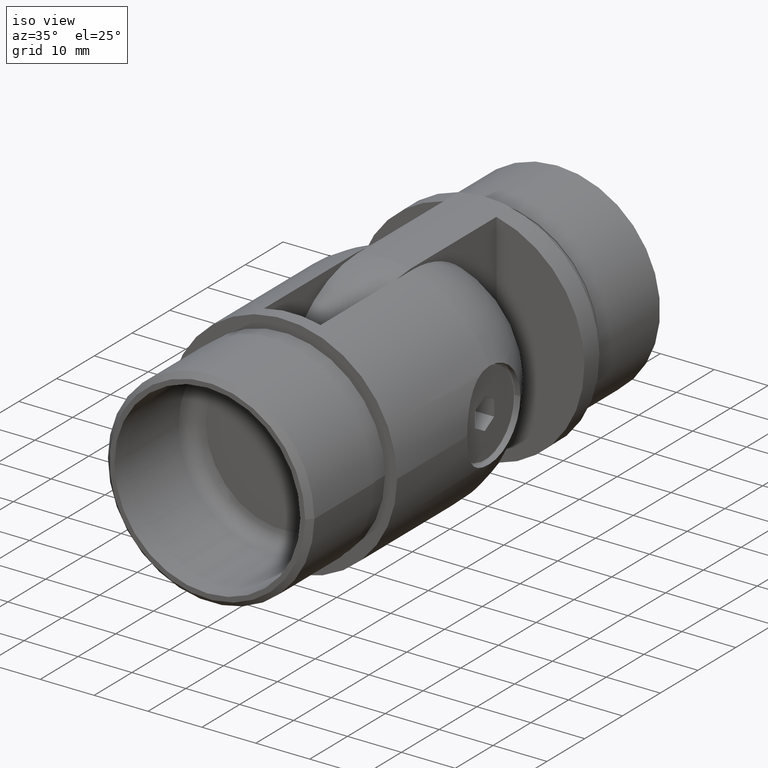
[diagram: clean part render]
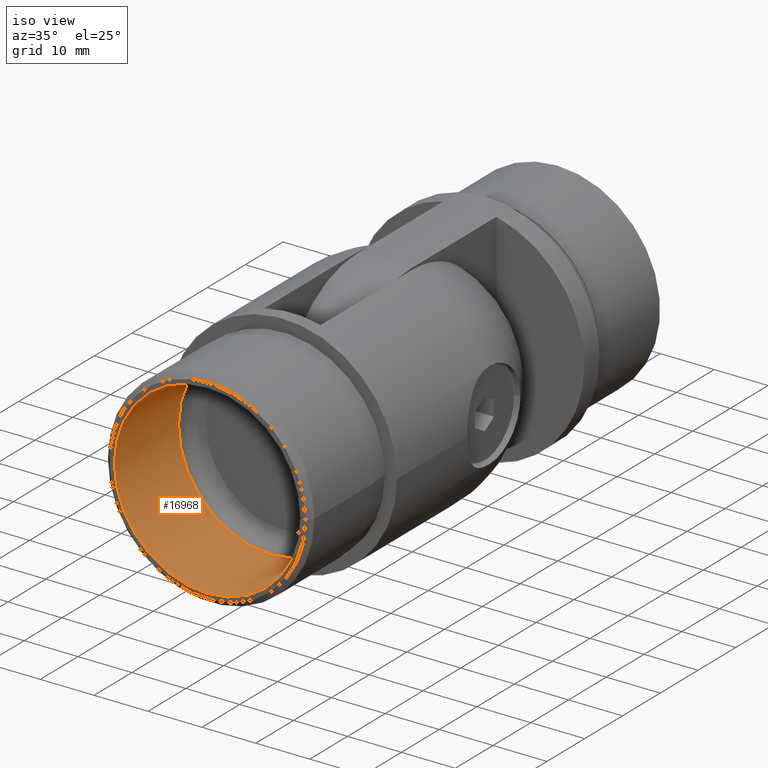
[diagram: same view with one face highlighted and labeled with its STEP entity id]
A machine part, iso view. The second image highlights one B-rep face of the part: STEP entity #16968.
In plain terms, the highlighted cylindrical surface (bore or boss wall) has radius 17.25 mm, axis along (-0, 1, 0).
Its self-contained STEP definition (entity closure, byte-faithful):
#44 = VERTEX_POINT ( 'NONE', #11053 ) ;
#182 = CYLINDRICAL_SURFACE ( 'NONE', #2869, 17.24999999999999600 ) ;
#375 = CARTESIAN_POINT ( 'NONE',  ( 2.038381726453983900E-016, -3.000000000000000000, 0.0000000000000000000 ) ) ;
#1243 = FACE_OUTER_BOUND ( 'NONE', #16745, .T. ) ;
#1389 = VERTEX_POINT ( 'NONE', #9701 ) ;
#1429 = CARTESIAN_POINT ( 'NONE',  ( 2.038381726453984600E-016, -3.000000000000001300, 0.0000000000000000000 ) ) ;
#2440 = DIRECTION ( 'NONE',  ( 6.794605754846613000E-017, -1.000000000000000000, 0.0000000000000000000 ) ) ;
#2869 = AXIS2_PLACEMENT_3D ( 'NONE', #375, #3753, #17933 ) ;
#3753 = DIRECTION ( 'NONE',  ( -6.794605754846613000E-017, 1.000000000000000000, -0.0000000000000000000 ) ) ;
#3841 = CIRCLE ( 'NONE', #10905, 17.24999999999999300 ) ;
#3919 = ORIENTED_EDGE ( 'NONE', *, *, #13979, .T. ) ;
#3960 = FACE_OUTER_BOUND ( 'NONE', #17744, .T. ) ;
#5155 = DIRECTION ( 'NONE',  ( 1.000000000000000000, 0.0000000000000000000, 0.0000000000000000000 ) ) ;
#9701 = CARTESIAN_POINT ( 'NONE',  ( 17.24999999999999600, -3.000000000000000000, 0.0000000000000000000 ) ) ;
#10905 = AXIS2_PLACEMENT_3D ( 'NONE', #15068, #2440, #5155 ) ;
#11035 = ORIENTED_EDGE ( 'NONE', *, *, #15330, .T. ) ;
#11053 = CARTESIAN_POINT ( 'NONE',  ( 17.24999999999999300, -20.00000000000000000, 0.0000000000000000000 ) ) ;
#11570 = DIRECTION ( 'NONE',  ( -6.837611295239389200E-017, 1.000000000000000000, 0.0000000000000000000 ) ) ;
#11628 = AXIS2_PLACEMENT_3D ( 'NONE', #1429, #11570, #18629 ) ;
#12764 = CIRCLE ( 'NONE', #11628, 17.24999999999999600 ) ;
#13979 = EDGE_CURVE ( 'NONE', #44, #44, #3841, .T. ) ;
#15068 = CARTESIAN_POINT ( 'NONE',  ( 1.358921150969322700E-015, -20.00000000000000000, 0.0000000000000000000 ) ) ;
#15330 = EDGE_CURVE ( 'NONE', #1389, #1389, #12764, .T. ) ;
#16745 = EDGE_LOOP ( 'NONE', ( #11035 ) ) ;
#16968 = ADVANCED_FACE ( 'NONE', ( #1243, #3960 ), #182, .F. ) ;
#17744 = EDGE_LOOP ( 'NONE', ( #3919 ) ) ;
#17933 = DIRECTION ( 'NONE',  ( -1.000000000000000000, -7.542275982507858400E-017, 0.0000000000000000000 ) ) ;
#18629 = DIRECTION ( 'NONE',  ( 1.000000000000000000, 7.542275982507858400E-017, 0.0000000000000000000 ) ) ;